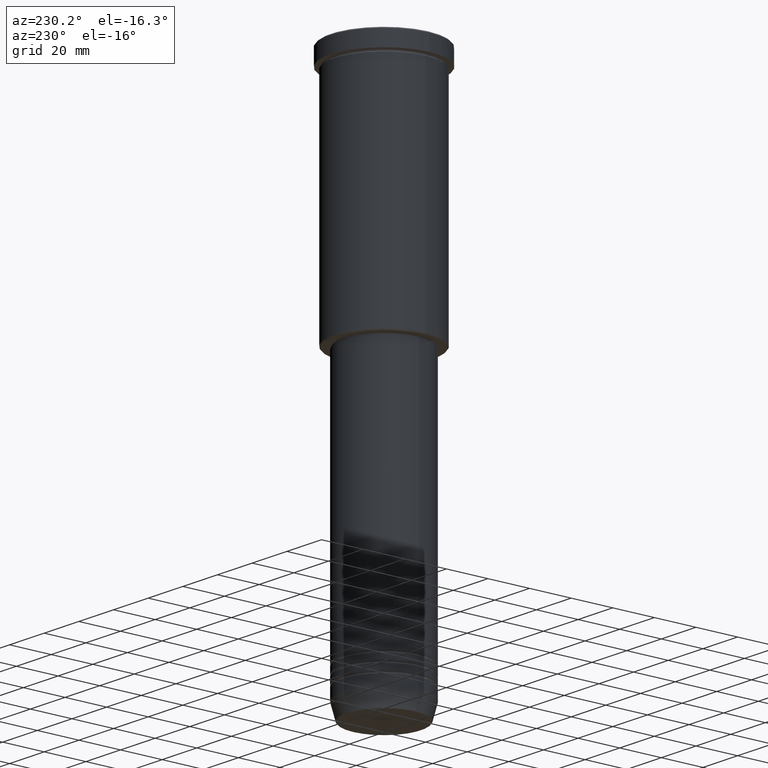
[diagram: clean part render]
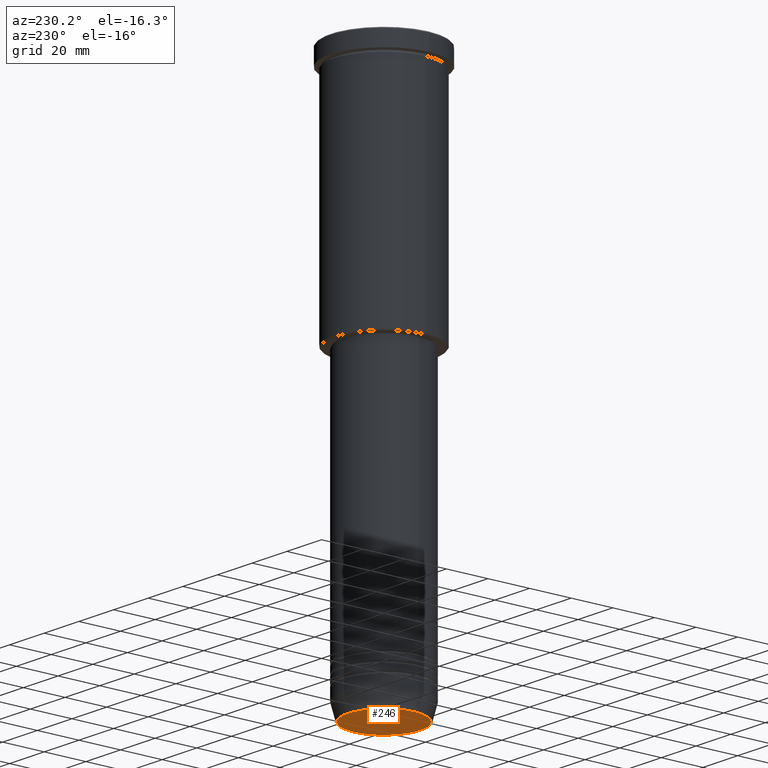
[diagram: same view with one face highlighted and labeled with its STEP entity id]
A machine part, auxiliary view. The second image highlights one B-rep face of the part: STEP entity #246.
In plain terms, the highlighted planar face has unit normal (0, -0, 1).
Its self-contained STEP definition (entity closure, byte-faithful):
#102 = VERTEX_POINT ( 'NONE', #1179 ) ;
#112 = CARTESIAN_POINT ( 'NONE',  ( 0.000000000000000000, 0.000000000000000000, -260.0000000000000000 ) ) ;
#184 = CIRCLE ( 'NONE', #1169, 17.47274296656153680 ) ;
#246 = ADVANCED_FACE ( 'NONE', ( #789 ), #422, .F. ) ;
#346 = DIRECTION ( 'NONE',  ( 1.000000000000000000, 0.000000000000000000, 0.000000000000000000 ) ) ;
#348 = ORIENTED_EDGE ( 'NONE', *, *, #349, .T. ) ;
#349 = EDGE_CURVE ( 'NONE', #102, #850, #184, .T. ) ;
#422 = PLANE ( 'NONE',  #975 ) ;
#467 = DIRECTION ( 'NONE',  ( 0.000000000000000000, 0.000000000000000000, -1.000000000000000000 ) ) ;
#537 = EDGE_CURVE ( 'NONE', #850, #102, #1093, .T. ) ;
#584 = DIRECTION ( 'NONE',  ( 1.000000000000000000, 0.000000000000000000, 0.000000000000000000 ) ) ;
#600 = DIRECTION ( 'NONE',  ( 0.000000000000000000, 0.000000000000000000, -1.000000000000000000 ) ) ;
#749 = CARTESIAN_POINT ( 'NONE',  ( 17.47274296656153680, 0.000000000000000000, -260.0000000000000000 ) ) ;
#789 = FACE_OUTER_BOUND ( 'NONE', #1177, .T. ) ;
#850 = VERTEX_POINT ( 'NONE', #749 ) ;
#889 = CARTESIAN_POINT ( 'NONE',  ( 0.000000000000000000, 0.000000000000000000, -260.0000000000000000 ) ) ;
#961 = AXIS2_PLACEMENT_3D ( 'NONE', #1049, #600, #584 ) ;
#975 = AXIS2_PLACEMENT_3D ( 'NONE', #889, #1004, #346 ) ;
#995 = DIRECTION ( 'NONE',  ( 1.000000000000000000, 0.000000000000000000, 0.000000000000000000 ) ) ;
#1004 = DIRECTION ( 'NONE',  ( 0.000000000000000000, -0.000000000000000000, 1.000000000000000000 ) ) ;
#1049 = CARTESIAN_POINT ( 'NONE',  ( 0.000000000000000000, 0.000000000000000000, -260.0000000000000000 ) ) ;
#1093 = CIRCLE ( 'NONE', #961, 17.47274296656153680 ) ;
#1163 = ORIENTED_EDGE ( 'NONE', *, *, #537, .T. ) ;
#1169 = AXIS2_PLACEMENT_3D ( 'NONE', #112, #467, #995 ) ;
#1177 = EDGE_LOOP ( 'NONE', ( #1163, #348 ) ) ;
#1179 = CARTESIAN_POINT ( 'NONE',  ( -17.47274296656153680, 2.169366823916868503E-15, -260.0000000000000000 ) ) ;